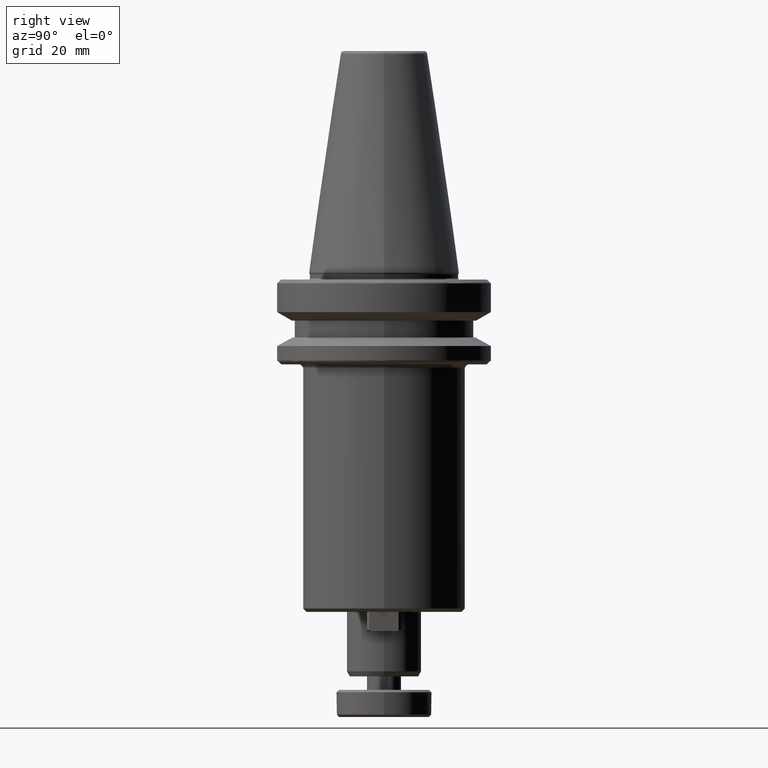
[diagram: clean part render]
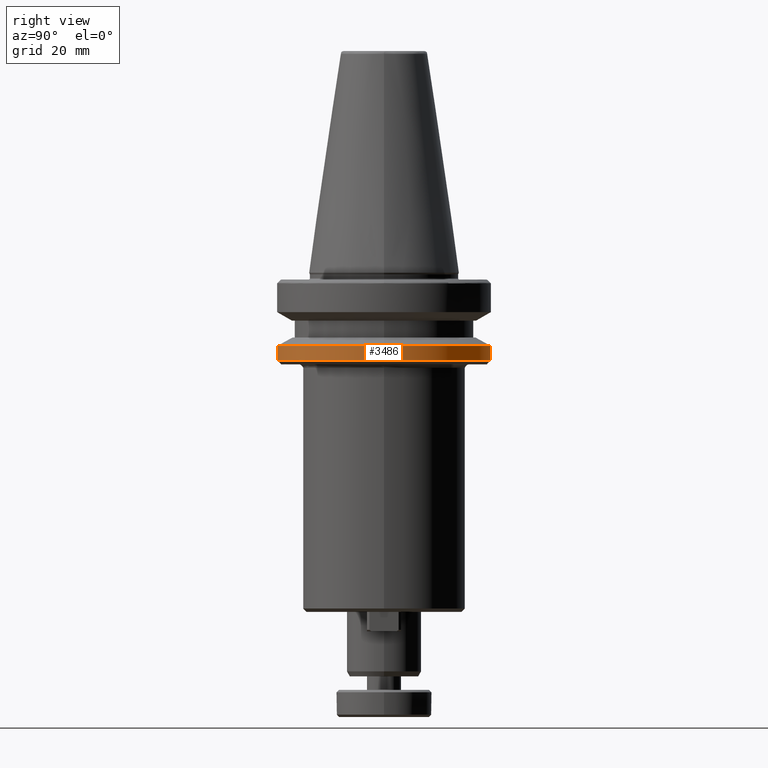
[diagram: same view with one face highlighted and labeled with its STEP entity id]
A machine part, right view. The second image highlights one B-rep face of the part: STEP entity #3486.
In plain terms, the highlighted cylindrical surface (partial cylindrical patch) has radius 31.5 mm, axis along (0, -0, 1).
Its self-contained STEP definition (entity closure, byte-faithful):
#87 = LINE ( 'NONE', #3240, #133 ) ;
#133 = VECTOR ( 'NONE', #3386, 1000.000000000000000 ) ;
#144 = CIRCLE ( 'NONE', #2296, 31.50000000000000000 ) ;
#417 = DIRECTION ( 'NONE',  ( 0.0000000000000000000, -5.507058653894625200E-017, 1.000000000000000000 ) ) ;
#522 = CIRCLE ( 'NONE', #2711, 31.50000000001813300 ) ;
#532 = CARTESIAN_POINT ( 'NONE',  ( 3.857637417314162700E-015, 31.50000000000000000, -25.83431457500000100 ) ) ;
#594 = CARTESIAN_POINT ( 'NONE',  ( 0.0000000000000000000, -31.50000000000000000, -21.58906648693698900 ) ) ;
#609 = CARTESIAN_POINT ( 'NONE',  ( 31.50000000001359300, -1.414249647752545200E-009, -25.83431457497250200 ) ) ;
#655 = VECTOR ( 'NONE', #417, 1000.000000000000000 ) ;
#701 = LINE ( 'NONE', #532, #655 ) ;
#718 = EDGE_CURVE ( 'NONE', #2477, #3906, #1372, .T. ) ;
#828 = CIRCLE ( 'NONE', #1334, 31.50000000001813300 ) ;
#875 = AXIS2_PLACEMENT_3D ( 'NONE', #2294, #2202, #2226 ) ;
#1242 = VERTEX_POINT ( 'NONE', #594 ) ;
#1334 = AXIS2_PLACEMENT_3D ( 'NONE', #1567, #1570, #1571 ) ;
#1372 = CIRCLE ( 'NONE', #3644, 31.50000000000000000 ) ;
#1433 = EDGE_CURVE ( 'NONE', #3602, #2477, #701, .T. ) ;
#1437 = VERTEX_POINT ( 'NONE', #609 ) ;
#1476 = EDGE_LOOP ( 'NONE', ( #1666, #1833, #1919, #1965, #2005, #2018 ) ) ;
#1546 = EDGE_CURVE ( 'NONE', #3602, #1437, #522, .T. ) ;
#1567 = CARTESIAN_POINT ( 'NONE',  ( 0.0000000000000000000, 0.0000000000000000000, -25.83431457497092200 ) ) ;
#1570 = DIRECTION ( 'NONE',  ( 0.0000000000000000000, -1.101411730781967500E-016, -1.000000000000000000 ) ) ;
#1571 = DIRECTION ( 'NONE',  ( 0.0000000000000000000, 1.000000000000000000, -1.101411730778291100E-016 ) ) ;
#1617 = CARTESIAN_POINT ( 'NONE',  ( 3.857637417314162700E-015, 31.50000000000000000, -21.58906648693698900 ) ) ;
#1666 = ORIENTED_EDGE ( 'NONE', *, *, #1546, .F. ) ;
#1792 = EDGE_CURVE ( 'NONE', #3906, #1242, #144, .T. ) ;
#1825 = EDGE_CURVE ( 'NONE', #2657, #1242, #87, .T. ) ;
#1833 = ORIENTED_EDGE ( 'NONE', *, *, #1433, .T. ) ;
#1919 = ORIENTED_EDGE ( 'NONE', *, *, #718, .T. ) ;
#1965 = ORIENTED_EDGE ( 'NONE', *, *, #1792, .T. ) ;
#2005 = ORIENTED_EDGE ( 'NONE', *, *, #1825, .F. ) ;
#2017 = CARTESIAN_POINT ( 'NONE',  ( 0.0000000000000000000, -31.50000000000000000, -25.83431457497091800 ) ) ;
#2018 = ORIENTED_EDGE ( 'NONE', *, *, #2423, .F. ) ;
#2202 = DIRECTION ( 'NONE',  ( 0.0000000000000000000, -5.507058653894625200E-017, 1.000000000000000000 ) ) ;
#2226 = DIRECTION ( 'NONE',  ( 0.0000000000000000000, -1.000000000000000000, 0.0000000000000000000 ) ) ;
#2294 = CARTESIAN_POINT ( 'NONE',  ( 0.0000000000000000000, 0.0000000000000000000, -25.83431457500000100 ) ) ;
#2296 = AXIS2_PLACEMENT_3D ( 'NONE', #3398, #3393, #3388 ) ;
#2423 = EDGE_CURVE ( 'NONE', #1437, #2657, #828, .T. ) ;
#2477 = VERTEX_POINT ( 'NONE', #1617 ) ;
#2657 = VERTEX_POINT ( 'NONE', #2017 ) ;
#2711 = AXIS2_PLACEMENT_3D ( 'NONE', #3843, #3841, #3838 ) ;
#2775 = FACE_OUTER_BOUND ( 'NONE', #1476, .T. ) ;
#2793 = CYLINDRICAL_SURFACE ( 'NONE', #875, 31.50000000000000000 ) ;
#2895 = CARTESIAN_POINT ( 'NONE',  ( 3.857637417314162700E-015, 31.50000000000000000, -25.83431457497091800 ) ) ;
#3033 = CARTESIAN_POINT ( 'NONE',  ( 0.0000000000000000000, 0.0000000000000000000, -21.58906648693698900 ) ) ;
#3034 = DIRECTION ( 'NONE',  ( -0.0000000000000000000, -0.0000000000000000000, -1.000000000000000000 ) ) ;
#3055 = DIRECTION ( 'NONE',  ( -1.000000000000000000, 0.0000000000000000000, 0.0000000000000000000 ) ) ;
#3240 = CARTESIAN_POINT ( 'NONE',  ( 0.0000000000000000000, -31.50000000000000000, -25.83431457500000100 ) ) ;
#3386 = DIRECTION ( 'NONE',  ( 0.0000000000000000000, -5.507058653894625200E-017, 1.000000000000000000 ) ) ;
#3388 = DIRECTION ( 'NONE',  ( -1.000000000000000000, 0.0000000000000000000, 0.0000000000000000000 ) ) ;
#3393 = DIRECTION ( 'NONE',  ( -0.0000000000000000000, -0.0000000000000000000, -1.000000000000000000 ) ) ;
#3398 = CARTESIAN_POINT ( 'NONE',  ( 0.0000000000000000000, 0.0000000000000000000, -21.58906648693698900 ) ) ;
#3486 = ADVANCED_FACE ( 'NONE', ( #2775 ), #2793, .T. ) ;
#3602 = VERTEX_POINT ( 'NONE', #2895 ) ;
#3644 = AXIS2_PLACEMENT_3D ( 'NONE', #3033, #3034, #3055 ) ;
#3838 = DIRECTION ( 'NONE',  ( 0.0000000000000000000, 1.000000000000000000, 1.101411730778291100E-016 ) ) ;
#3841 = DIRECTION ( 'NONE',  ( -0.0000000000000000000, 1.101411730781967500E-016, -1.000000000000000000 ) ) ;
#3843 = CARTESIAN_POINT ( 'NONE',  ( 0.0000000000000000000, 0.0000000000000000000, -25.83431457497092200 ) ) ;
#3848 = CARTESIAN_POINT ( 'NONE',  ( 31.50000000000000000, 3.857637417314162700E-015, -21.58906648693698900 ) ) ;
#3906 = VERTEX_POINT ( 'NONE', #3848 ) ;